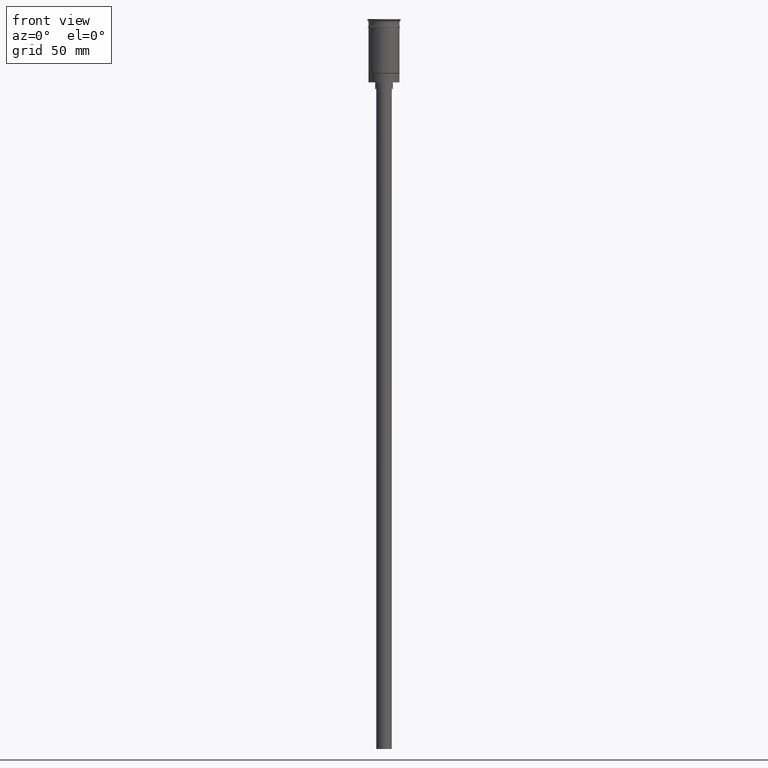
[diagram: clean part render]
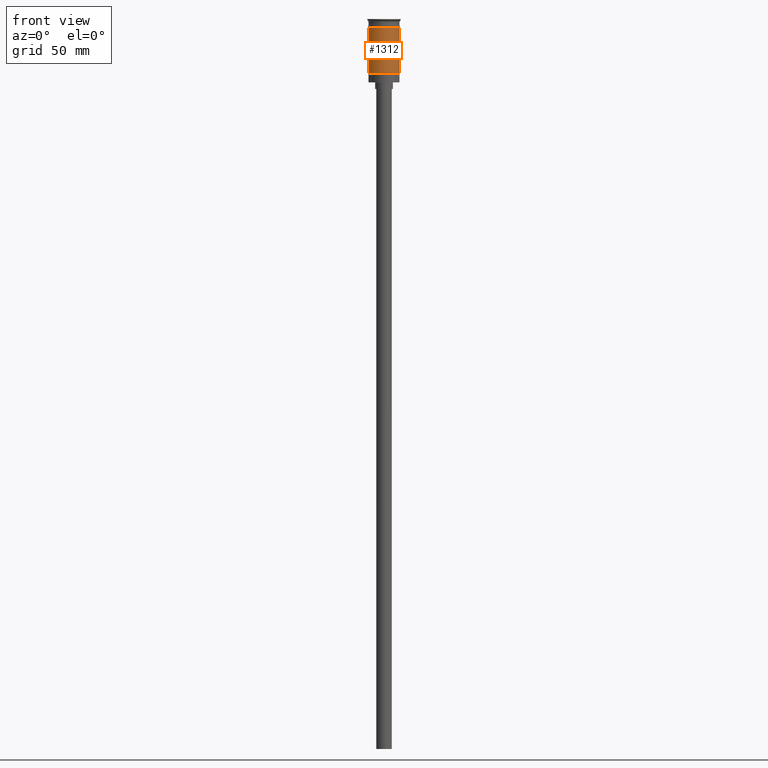
[diagram: same view with one face highlighted and labeled with its STEP entity id]
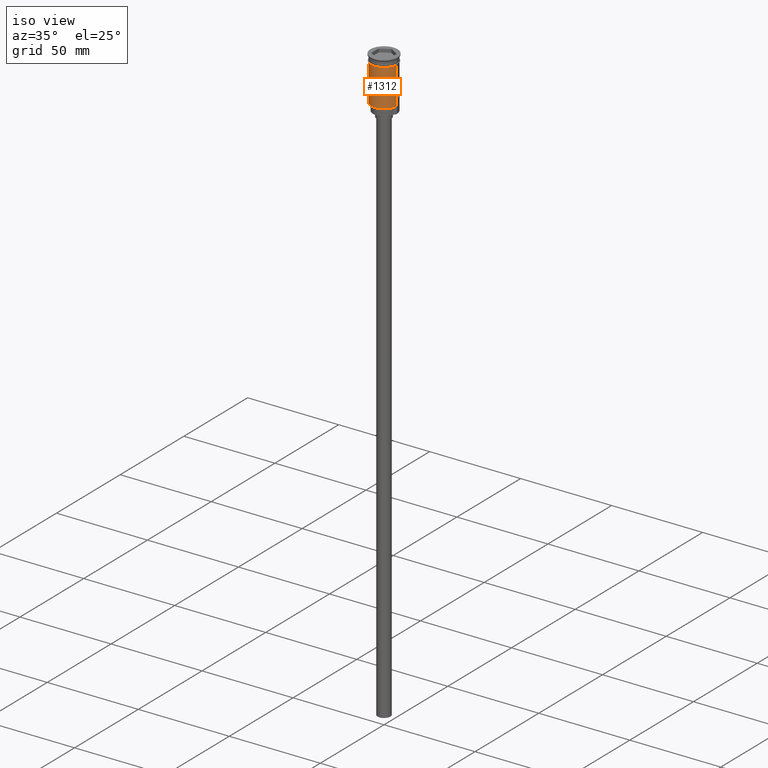
[diagram: same view with one face highlighted and labeled with its STEP entity id]
A machine part, front view. The second image highlights one B-rep face of the part: STEP entity #1312.
A second angle (iso view) of the same face is appended — the face is thin or edge-on in the first view.
In plain terms, the highlighted cylindrical surface (edge-blend (fillet) strip) has radius 7 mm, axis along (-0, -0, 1).
Its self-contained STEP definition (entity closure, byte-faithful):
#5 = CIRCLE ( 'NONE', #446, 6.999999999999999112 ) ;
#31 = AXIS2_PLACEMENT_3D ( 'NONE', #1597, #802, #516 ) ;
#132 = CARTESIAN_POINT ( 'NONE',  ( 0.000000000000000000, 0.000000000000000000, 0.000000000000000000 ) ) ;
#146 = ORIENTED_EDGE ( 'NONE', *, *, #1130, .T. ) ;
#153 = DIRECTION ( 'NONE',  ( -0.000000000000000000, -0.000000000000000000, 1.000000000000000000 ) ) ;
#191 = ORIENTED_EDGE ( 'NONE', *, *, #983, .F. ) ;
#291 = DIRECTION ( 'NONE',  ( 1.000000000000000000, 0.000000000000000000, 0.000000000000000000 ) ) ;
#382 = CYLINDRICAL_SURFACE ( 'NONE', #644, 6.999999999999996447 ) ;
#432 = CARTESIAN_POINT ( 'NONE',  ( 6.999999999999996447, 8.572527594031468259E-16, -24.30000000000006466 ) ) ;
#446 = AXIS2_PLACEMENT_3D ( 'NONE', #547, #823, #291 ) ;
#516 = DIRECTION ( 'NONE',  ( -1.000000000000000000, 0.000000000000000000, 0.000000000000000000 ) ) ;
#528 = ORIENTED_EDGE ( 'NONE', *, *, #1079, .T. ) ;
#547 = CARTESIAN_POINT ( 'NONE',  ( 0.000000000000000000, 0.000000000000000000, -3.799999999999998490 ) ) ;
#585 = VERTEX_POINT ( 'NONE', #1431 ) ;
#644 = AXIS2_PLACEMENT_3D ( 'NONE', #132, #153, #1259 ) ;
#694 = CARTESIAN_POINT ( 'NONE',  ( 6.999999999999999112, 0.000000000000000000, -3.799999999999998490 ) ) ;
#714 = VECTOR ( 'NONE', #1098, 1000.000000000000000 ) ;
#720 = ORIENTED_EDGE ( 'NONE', *, *, #817, .F. ) ;
#752 = CARTESIAN_POINT ( 'NONE',  ( 6.999999999999996447, 0.000000000000000000, 0.000000000000000000 ) ) ;
#778 = DIRECTION ( 'NONE',  ( -0.000000000000000000, -0.000000000000000000, 1.000000000000000000 ) ) ;
#784 = LINE ( 'NONE', #1038, #1406 ) ;
#790 = CARTESIAN_POINT ( 'NONE',  ( -6.999999999999993783, 0.000000000000000000, -24.30000000000006466 ) ) ;
#802 = DIRECTION ( 'NONE',  ( -0.000000000000000000, -0.000000000000000000, 1.000000000000000000 ) ) ;
#817 = EDGE_CURVE ( 'NONE', #1246, #585, #784, .T. ) ;
#823 = DIRECTION ( 'NONE',  ( -0.000000000000000000, -0.000000000000000000, 1.000000000000000000 ) ) ;
#932 = VERTEX_POINT ( 'NONE', #432 ) ;
#983 = EDGE_CURVE ( 'NONE', #585, #1417, #5, .T. ) ;
#1026 = CIRCLE ( 'NONE', #31, 6.999999999999996447 ) ;
#1038 = CARTESIAN_POINT ( 'NONE',  ( -6.999999999999996447, 8.572527594031468259E-16, 0.000000000000000000 ) ) ;
#1079 = EDGE_CURVE ( 'NONE', #1246, #932, #1026, .T. ) ;
#1098 = DIRECTION ( 'NONE',  ( -0.000000000000000000, -0.000000000000000000, 1.000000000000000000 ) ) ;
#1105 = LINE ( 'NONE', #752, #714 ) ;
#1130 = EDGE_CURVE ( 'NONE', #932, #1417, #1105, .T. ) ;
#1246 = VERTEX_POINT ( 'NONE', #790 ) ;
#1259 = DIRECTION ( 'NONE',  ( 1.000000000000000000, 0.000000000000000000, 0.000000000000000000 ) ) ;
#1312 = ADVANCED_FACE ( 'NONE', ( #1387 ), #382, .T. ) ;
#1387 = FACE_OUTER_BOUND ( 'NONE', #1505, .T. ) ;
#1406 = VECTOR ( 'NONE', #778, 1000.000000000000000 ) ;
#1417 = VERTEX_POINT ( 'NONE', #694 ) ;
#1431 = CARTESIAN_POINT ( 'NONE',  ( -7.000000000000000000, 8.572527594031472204E-16, -3.799999999999998490 ) ) ;
#1505 = EDGE_LOOP ( 'NONE', ( #720, #528, #146, #191 ) ) ;
#1597 = CARTESIAN_POINT ( 'NONE',  ( 0.000000000000000000, 0.000000000000000000, -24.30000000000006466 ) ) ;